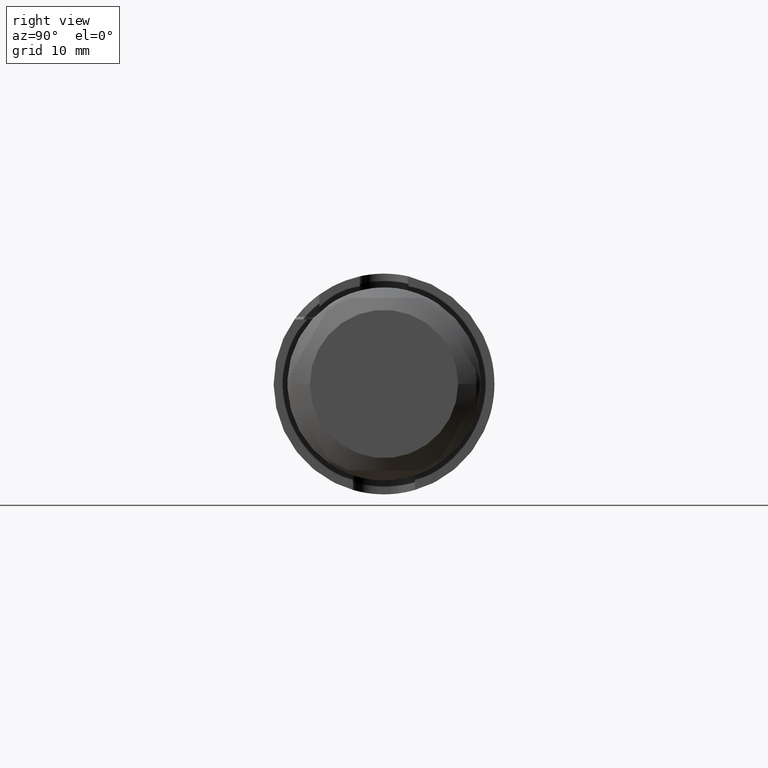
[diagram: clean part render]
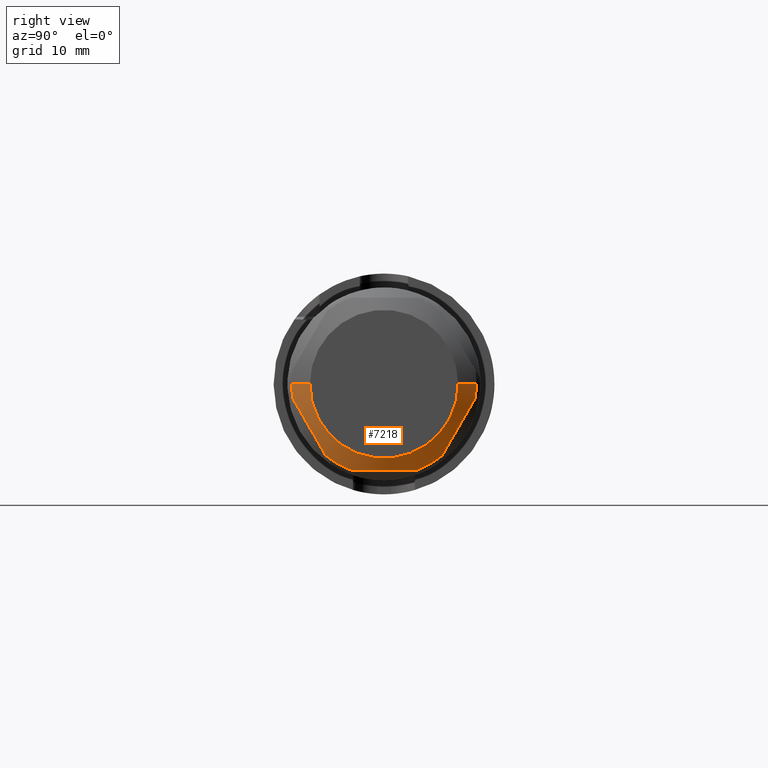
[diagram: same view with one face highlighted and labeled with its STEP entity id]
A machine part, right view. The second image highlights one B-rep face of the part: STEP entity #7218.
In plain terms, the highlighted conical surface has half-angle 60 deg.
Its self-contained STEP definition (entity closure, byte-faithful):
#6557=CARTESIAN_POINT('',(1.628445554338E1,-1.320442583614E1,
-2.129263567031E0));
#6558=CARTESIAN_POINT('',(1.644888995402E1,-1.280413751181E1,
-2.822583282450E0));
#6559=CARTESIAN_POINT('',(1.670318968294E1,-1.200745244283E1,
-4.202482299553E0));
#6560=CARTESIAN_POINT('',(1.683288207547E1,-1.082502281929E1,
-6.250510483892E0));
#6561=CARTESIAN_POINT('',(1.670310415631E1,-9.642911027525E0,
-8.297988167461E0));
#6562=CARTESIAN_POINT('',(1.644884551611E1,-8.846389406075E0,
-9.677604085138E0));
#6563=CARTESIAN_POINT('',(1.628445554338E1,-8.446209258471E0,
-1.037073643297E1));
#6565=CARTESIAN_POINT('',(1.628445554338E1,0.E0,0.E0));
#6566=DIRECTION('',(-1.E0,0.E0,0.E0));
#6567=DIRECTION('',(0.E0,-9.872467914871E-1,-1.591972760397E-1));
#6568=AXIS2_PLACEMENT_3D('',#6565,#6566,#6567);
#6570=DIRECTION('',(-5.E-1,-8.660254037844E-1,5.910846101776E-13));
#6571=VECTOR('',#6570,3.031088913235E0);
#6572=CARTESIAN_POINT('',(1.78E1,-1.075E1,0.E0));
#6573=LINE('',#6572,#6571);
#6574=CARTESIAN_POINT('',(1.78E1,0.E0,0.E0));
#6575=DIRECTION('',(-1.E0,0.E0,0.E0));
#6576=DIRECTION('',(0.E0,1.E0,0.E0));
#6577=AXIS2_PLACEMENT_3D('',#6574,#6575,#6576);
#6579=DIRECTION('',(-5.E-1,8.660254037844E-1,-5.912097978319E-13));
#6580=VECTOR('',#6579,3.031088913235E0);
#6581=CARTESIAN_POINT('',(1.78E1,1.075E1,0.E0));
#6582=LINE('',#6581,#6580);
#6583=CARTESIAN_POINT('',(1.628445554338E1,0.E0,0.E0));
#6584=DIRECTION('',(-1.E0,0.E0,0.E0));
#6585=DIRECTION('',(0.E0,1.E0,0.E0));
#6586=AXIS2_PLACEMENT_3D('',#6583,#6584,#6585);
#6588=CARTESIAN_POINT('',(1.628445554338E1,8.446209258471E0,-1.037073643297E1));
#6589=CARTESIAN_POINT('',(1.644888995402E1,8.846497582803E0,-9.677416717550E0));
#6590=CARTESIAN_POINT('',(1.670318968294E1,9.643182651782E0,-8.297517700447E0));
#6591=CARTESIAN_POINT('',(1.683288207547E1,1.082561227532E1,-6.249489516108E0));
#6592=CARTESIAN_POINT('',(1.670310415631E1,1.200772406709E1,-4.202011832539E0));
#6593=CARTESIAN_POINT('',(1.644884551611E1,1.280424568854E1,-2.822395914862E0));
#6594=CARTESIAN_POINT('',(1.628445554338E1,1.320442583614E1,-2.129263567031E0));
#6596=CARTESIAN_POINT('',(1.628445554338E1,0.E0,0.E0));
#6597=DIRECTION('',(-1.E0,0.E0,0.E0));
#6598=DIRECTION('',(0.E0,6.314922810072E-1,-7.753821632127E-1));
#6599=AXIS2_PLACEMENT_3D('',#6596,#6597,#6598);
#6601=CARTESIAN_POINT('',(1.628445554338E1,-4.758216577669E0,-1.25E1));
#6602=CARTESIAN_POINT('',(1.644888995402E1,-3.957639929005E0,-1.25E1));
#6603=CARTESIAN_POINT('',(1.670318968294E1,-2.364269791047E0,-1.25E1));
#6604=CARTESIAN_POINT('',(1.683288207547E1,5.894560252869E-4,-1.25E1));
#6605=CARTESIAN_POINT('',(1.670310415631E1,2.364813039561E0,-1.25E1));
#6606=CARTESIAN_POINT('',(1.644884551611E1,3.957856282460E0,-1.25E1));
#6607=CARTESIAN_POINT('',(1.628445554338E1,4.758216577669E0,-1.25E1));
#6609=CARTESIAN_POINT('',(1.628445554338E1,0.E0,0.E0));
#6610=DIRECTION('',(-1.E0,0.E0,0.E0));
#6611=DIRECTION('',(0.E0,-3.557545104799E-1,-9.345794392523E-1));
#6612=AXIS2_PLACEMENT_3D('',#6609,#6610,#6611);
#7107=CARTESIAN_POINT('',(1.78E1,1.075E1,0.E0));
#7108=CARTESIAN_POINT('',(1.78E1,-1.075E1,0.E0));
#7109=VERTEX_POINT('',#7107);
#7110=VERTEX_POINT('',#7108);
#7119=CARTESIAN_POINT('',(1.628445554338E1,1.337499999999E1,
-1.791131800065E-12));
#7120=VERTEX_POINT('',#7119);
#7121=CARTESIAN_POINT('',(1.628445554338E1,-1.337499999999E1,
1.790752345154E-12));
#7122=VERTEX_POINT('',#7121);
#7133=VERTEX_POINT('',#6557);
#7134=VERTEX_POINT('',#6563);
#7135=VERTEX_POINT('',#6588);
#7136=VERTEX_POINT('',#6594);
#7137=VERTEX_POINT('',#6601);
#7138=VERTEX_POINT('',#6607);
#7192=CARTESIAN_POINT('',(1.704222777169E1,0.E0,0.E0));
#7193=DIRECTION('',(-1.E0,0.E0,0.E0));
#7194=DIRECTION('',(0.E0,1.E0,0.E0));
#7195=AXIS2_PLACEMENT_3D('',#7192,#7193,#7194);
#7196=CONICAL_SURFACE('',#7195,1.20625E1,6.E1);
#7198=ORIENTED_EDGE('',*,*,#7197,.F.);
#7200=ORIENTED_EDGE('',*,*,#7199,.T.);
#7202=ORIENTED_EDGE('',*,*,#7201,.F.);
#7203=ORIENTED_EDGE('',*,*,#7185,.F.);
#7205=ORIENTED_EDGE('',*,*,#7204,.T.);
#7207=ORIENTED_EDGE('',*,*,#7206,.T.);
#7209=ORIENTED_EDGE('',*,*,#7208,.F.);
#7211=ORIENTED_EDGE('',*,*,#7210,.T.);
#7213=ORIENTED_EDGE('',*,*,#7212,.F.);
#7215=ORIENTED_EDGE('',*,*,#7214,.T.);
#7216=EDGE_LOOP('',(#7198,#7200,#7202,#7203,#7205,#7207,#7209,#7211,#7213,
#7215));
#7217=FACE_OUTER_BOUND('',#7216,.F.);
#7218=ADVANCED_FACE('',(#7217),#7196,.T.);
#6564=B_SPLINE_CURVE_WITH_KNOTS('',3,(#6557,#6558,#6559,#6560,#6561,#6562,
#6563),.UNSPECIFIED.,.F.,.F.,(4,1,1,1,4),(0.E0,2.5E-1,5.E-1,7.5E-1,1.E0),
.UNSPECIFIED.);
#6569=CIRCLE('',#6568,1.3375E1);
#6578=CIRCLE('',#6577,1.075E1);
#6587=CIRCLE('',#6586,1.3375E1);
#6595=B_SPLINE_CURVE_WITH_KNOTS('',3,(#6588,#6589,#6590,#6591,#6592,#6593,
#6594),.UNSPECIFIED.,.F.,.F.,(4,1,1,1,4),(0.E0,2.5E-1,5.E-1,7.5E-1,1.E0),
.UNSPECIFIED.);
#6600=CIRCLE('',#6599,1.3375E1);
#6608=B_SPLINE_CURVE_WITH_KNOTS('',3,(#6601,#6602,#6603,#6604,#6605,#6606,
#6607),.UNSPECIFIED.,.F.,.F.,(4,1,1,1,4),(0.E0,2.5E-1,5.E-1,7.5E-1,1.E0),
.UNSPECIFIED.);
#6613=CIRCLE('',#6612,1.3375E1);
#7185=EDGE_CURVE('',#7109,#7110,#6578,.T.);
#7197=EDGE_CURVE('',#7133,#7134,#6564,.T.);
#7199=EDGE_CURVE('',#7133,#7122,#6569,.T.);
#7201=EDGE_CURVE('',#7110,#7122,#6573,.T.);
#7204=EDGE_CURVE('',#7109,#7120,#6582,.T.);
#7206=EDGE_CURVE('',#7120,#7136,#6587,.T.);
#7208=EDGE_CURVE('',#7135,#7136,#6595,.T.);
#7210=EDGE_CURVE('',#7135,#7138,#6600,.T.);
#7212=EDGE_CURVE('',#7137,#7138,#6608,.T.);
#7214=EDGE_CURVE('',#7137,#7134,#6613,.T.);